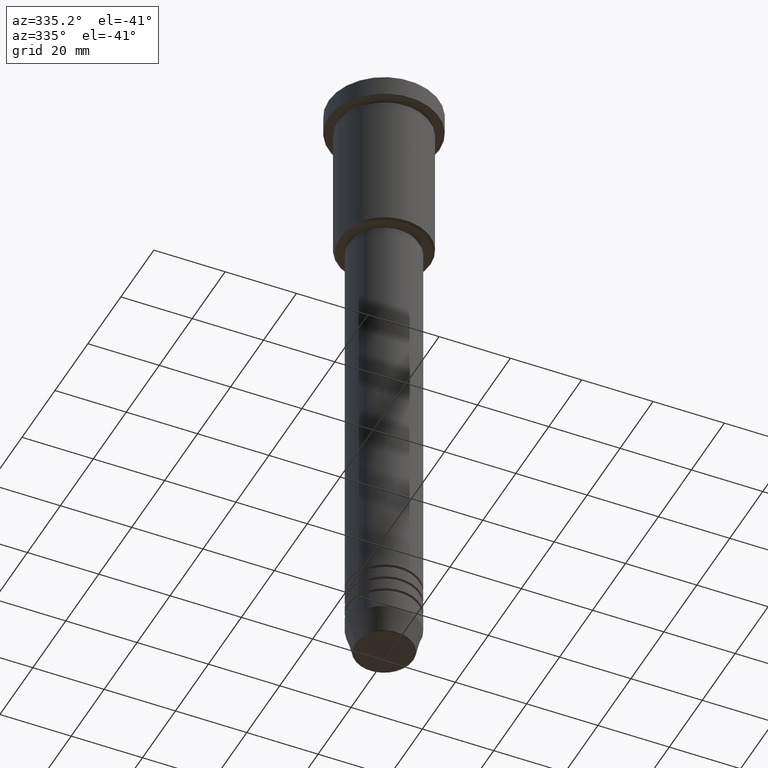
[diagram: clean part render]
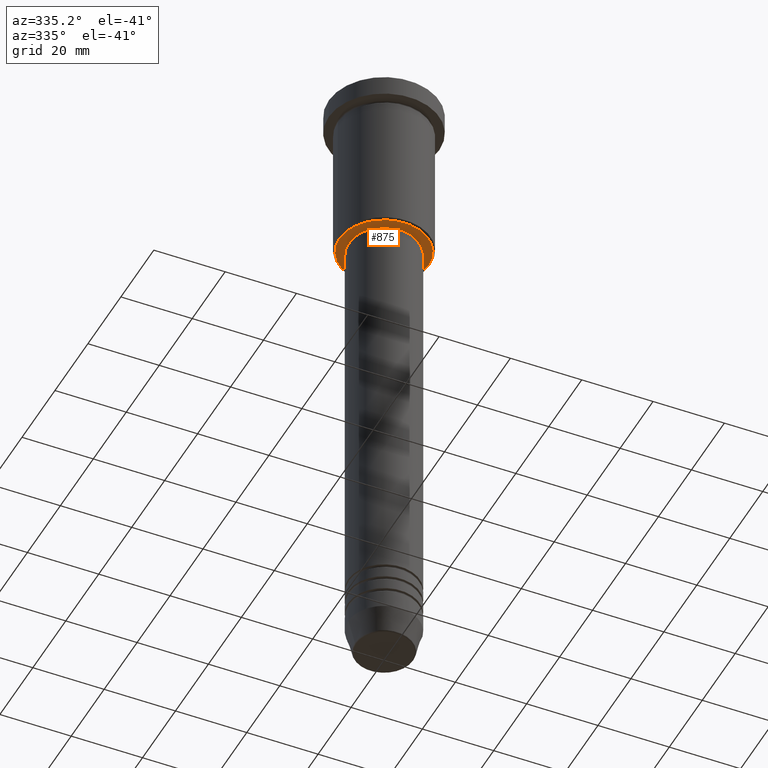
[diagram: same view with one face highlighted and labeled with its STEP entity id]
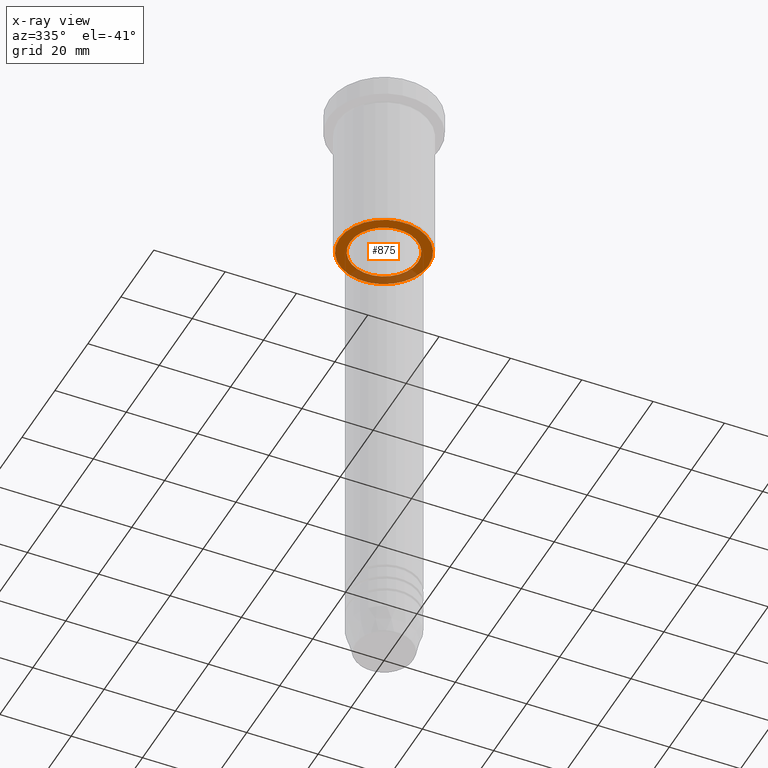
[diagram: x-ray of the same camera — body ghosted, the highlighted face saturated]
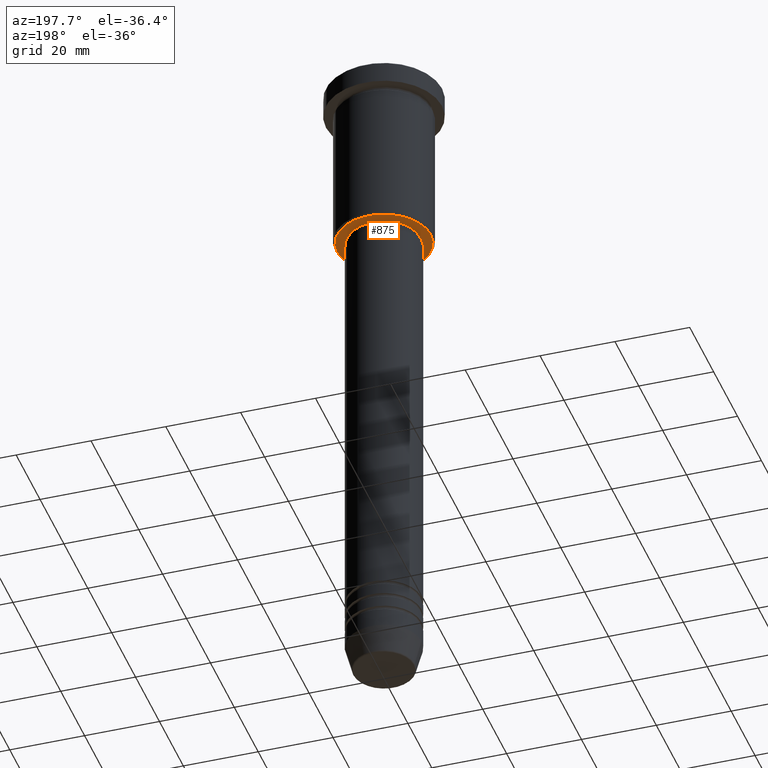
[diagram: same view with one face highlighted and labeled with its STEP entity id]
A machine part, auxiliary view. The second image highlights one B-rep face of the part: STEP entity #875.
The next image is the same camera in x-ray: the body ghosted, the highlighted face saturated — about 25% of this face is hidden behind the body in this view.
A second angle (auxiliary view) of the same face is appended — the face is thin or edge-on in the first view.
In plain terms, the highlighted planar face has unit normal (0, 0, -1).
Its self-contained STEP definition (entity closure, byte-faithful):
#40 = ORIENTED_EDGE ( 'NONE', *, *, #977, .T. ) ;
#66 = VERTEX_POINT ( 'NONE', #400 ) ;
#117 = CARTESIAN_POINT ( 'NONE',  ( 9.500000000000001776, 0.000000000000000000, -46.00000000000000711 ) ) ;
#151 = DIRECTION ( 'NONE',  ( 1.000000000000000000, 0.000000000000000000, 0.000000000000000000 ) ) ;
#156 = EDGE_CURVE ( 'NONE', #975, #284, #410, .T. ) ;
#159 = DIRECTION ( 'NONE',  ( -0.000000000000000000, -0.000000000000000000, 1.000000000000000000 ) ) ;
#193 = CARTESIAN_POINT ( 'NONE',  ( 0.000000000000000000, 0.000000000000000000, -46.00000000000000711 ) ) ;
#222 = CARTESIAN_POINT ( 'NONE',  ( 0.000000000000000000, 13.00000000000000000, -46.00000000000000000 ) ) ;
#237 = DIRECTION ( 'NONE',  ( -1.000000000000000000, 0.000000000000000000, -0.000000000000000000 ) ) ;
#259 = ORIENTED_EDGE ( 'NONE', *, *, #156, .T. ) ;
#273 = AXIS2_PLACEMENT_3D ( 'NONE', #222, #691, #237 ) ;
#284 = VERTEX_POINT ( 'NONE', #117 ) ;
#308 = FACE_BOUND ( 'NONE', #1149, .T. ) ;
#309 = CARTESIAN_POINT ( 'NONE',  ( 0.000000000000000000, 0.000000000000000000, -46.00000000000000000 ) ) ;
#325 = PLANE ( 'NONE',  #273 ) ;
#341 = CARTESIAN_POINT ( 'NONE',  ( 0.000000000000000000, 0.000000000000000000, -46.00000000000000711 ) ) ;
#372 = AXIS2_PLACEMENT_3D ( 'NONE', #193, #526, #151 ) ;
#400 = CARTESIAN_POINT ( 'NONE',  ( 12.50000000000001066, 0.000000000000000000, -46.00000000000000000 ) ) ;
#410 = CIRCLE ( 'NONE', #372, 9.500000000000001776 ) ;
#421 = FACE_OUTER_BOUND ( 'NONE', #995, .T. ) ;
#422 = DIRECTION ( 'NONE',  ( -1.000000000000000000, 0.000000000000000000, 0.000000000000000000 ) ) ;
#450 = DIRECTION ( 'NONE',  ( 1.000000000000000000, 0.000000000000000000, 0.000000000000000000 ) ) ;
#472 = CIRCLE ( 'NONE', #1136, 12.50000000000001066 ) ;
#490 = EDGE_CURVE ( 'NONE', #66, #1012, #472, .T. ) ;
#512 = DIRECTION ( 'NONE',  ( 0.000000000000000000, 0.000000000000000000, -1.000000000000000000 ) ) ;
#513 = EDGE_CURVE ( 'NONE', #1012, #66, #963, .T. ) ;
#526 = DIRECTION ( 'NONE',  ( -0.000000000000000000, -0.000000000000000000, 1.000000000000000000 ) ) ;
#603 = ORIENTED_EDGE ( 'NONE', *, *, #490, .T. ) ;
#691 = DIRECTION ( 'NONE',  ( 0.000000000000000000, 0.000000000000000000, -1.000000000000000000 ) ) ;
#767 = DIRECTION ( 'NONE',  ( 0.000000000000000000, 0.000000000000000000, -1.000000000000000000 ) ) ;
#799 = ORIENTED_EDGE ( 'NONE', *, *, #513, .T. ) ;
#825 = AXIS2_PLACEMENT_3D ( 'NONE', #341, #159, #450 ) ;
#832 = AXIS2_PLACEMENT_3D ( 'NONE', #953, #767, #1137 ) ;
#875 = ADVANCED_FACE ( 'NONE', ( #421, #308 ), #325, .T. ) ;
#887 = CIRCLE ( 'NONE', #825, 9.500000000000001776 ) ;
#898 = CARTESIAN_POINT ( 'NONE',  ( -9.500000000000001776, 1.163414459189985682E-15, -46.00000000000000711 ) ) ;
#953 = CARTESIAN_POINT ( 'NONE',  ( 0.000000000000000000, 0.000000000000000000, -46.00000000000000000 ) ) ;
#963 = CIRCLE ( 'NONE', #832, 12.50000000000001066 ) ;
#975 = VERTEX_POINT ( 'NONE', #898 ) ;
#977 = EDGE_CURVE ( 'NONE', #284, #975, #887, .T. ) ;
#995 = EDGE_LOOP ( 'NONE', ( #603, #799 ) ) ;
#1012 = VERTEX_POINT ( 'NONE', #1159 ) ;
#1136 = AXIS2_PLACEMENT_3D ( 'NONE', #309, #512, #422 ) ;
#1137 = DIRECTION ( 'NONE',  ( -1.000000000000000000, 0.000000000000000000, 0.000000000000000000 ) ) ;
#1149 = EDGE_LOOP ( 'NONE', ( #40, #259 ) ) ;
#1159 = CARTESIAN_POINT ( 'NONE',  ( -12.50000000000001066, 1.561424668912876097E-15, -46.00000000000000000 ) ) ;